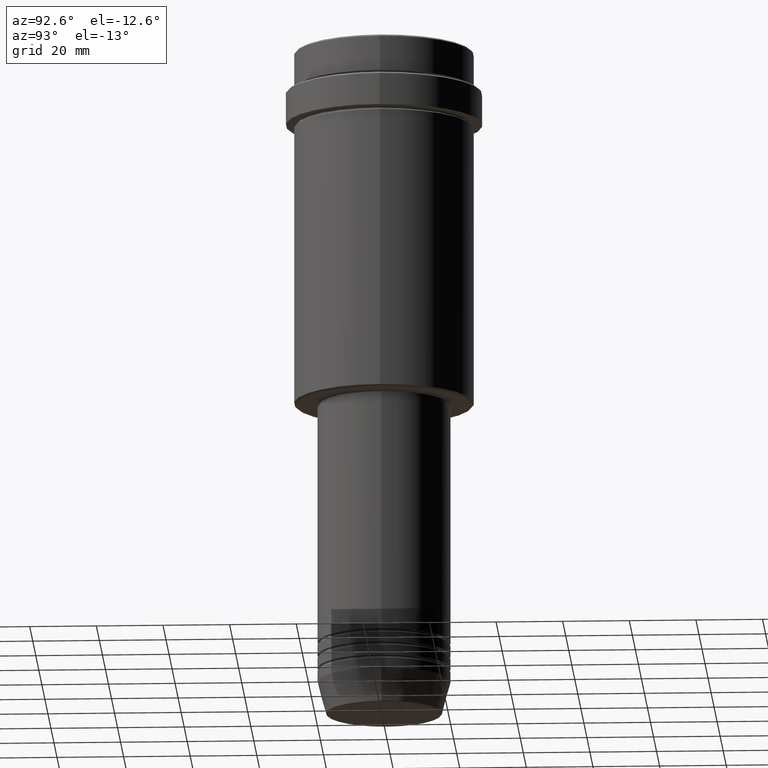
[diagram: clean part render]
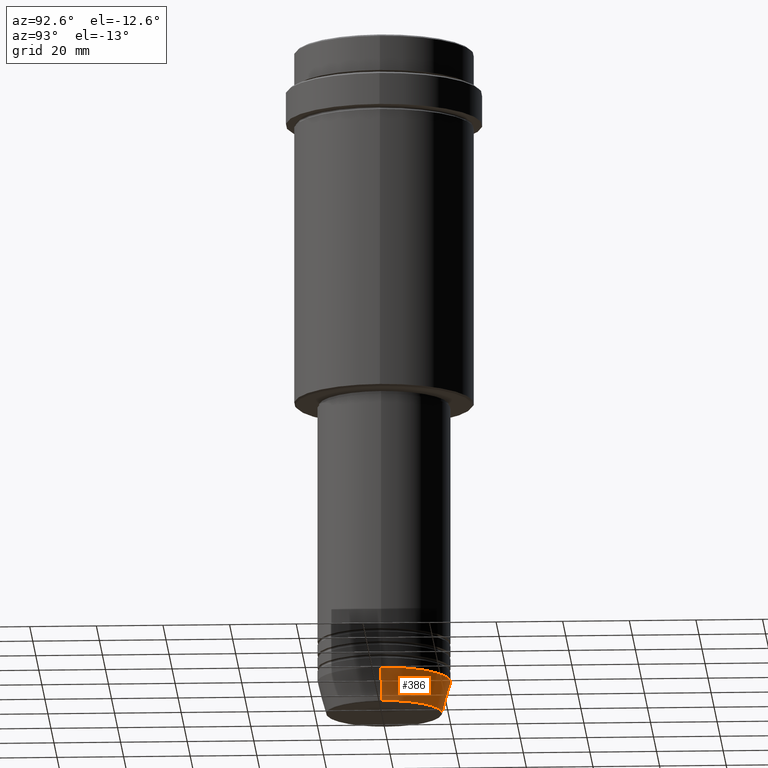
[diagram: same view with one face highlighted and labeled with its STEP entity id]
A machine part, auxiliary view. The second image highlights one B-rep face of the part: STEP entity #386.
In plain terms, the highlighted conical surface has half-angle 15 deg.
Its self-contained STEP definition (entity closure, byte-faithful):
#31 = CARTESIAN_POINT ( 'NONE',  ( -17.41980749484382329, 2.291302373663531915E-15, -202.6294095225512706 ) ) ;
#47 = AXIS2_PLACEMENT_3D ( 'NONE', #187, #817, #1394 ) ;
#79 = DIRECTION ( 'NONE',  ( -0.000000000000000000, -0.000000000000000000, 1.000000000000000000 ) ) ;
#91 = DIRECTION ( 'NONE',  ( 0.2588190451025211836, 0.000000000000000000, 0.9659258262890680902 ) ) ;
#162 = AXIS2_PLACEMENT_3D ( 'NONE', #303, #622, #1050 ) ;
#164 = AXIS2_PLACEMENT_3D ( 'NONE', #892, #79, #917 ) ;
#187 = CARTESIAN_POINT ( 'NONE',  ( 0.000000000000000000, 0.000000000000000000, -193.0000000000000000 ) ) ;
#201 = EDGE_LOOP ( 'NONE', ( #735, #374, #391, #947 ) ) ;
#250 = VERTEX_POINT ( 'NONE', #756 ) ;
#303 = CARTESIAN_POINT ( 'NONE',  ( 0.000000000000000000, 0.000000000000000000, -202.6294095225512706 ) ) ;
#313 = CIRCLE ( 'NONE', #162, 17.41980749484382329 ) ;
#374 = ORIENTED_EDGE ( 'NONE', *, *, #712, .T. ) ;
#386 = ADVANCED_FACE ( 'NONE', ( #948 ), #647, .T. ) ;
#391 = ORIENTED_EDGE ( 'NONE', *, *, #904, .F. ) ;
#398 = EDGE_CURVE ( 'NONE', #1188, #821, #313, .T. ) ;
#408 = CARTESIAN_POINT ( 'NONE',  ( 20.00000000000000000, 0.000000000000000000, -193.0000000000000000 ) ) ;
#500 = VERTEX_POINT ( 'NONE', #833 ) ;
#586 = LINE ( 'NONE', #408, #981 ) ;
#591 = CARTESIAN_POINT ( 'NONE',  ( 17.41980749484382329, 0.000000000000000000, -202.6294095225512706 ) ) ;
#622 = DIRECTION ( 'NONE',  ( -0.000000000000000000, -0.000000000000000000, 1.000000000000000000 ) ) ;
#647 = CONICAL_SURFACE ( 'NONE', #47, 20.00000000000000000, 0.2617993877991499074 ) ;
#712 = EDGE_CURVE ( 'NONE', #821, #250, #1015, .T. ) ;
#735 = ORIENTED_EDGE ( 'NONE', *, *, #398, .T. ) ;
#756 = CARTESIAN_POINT ( 'NONE',  ( -20.00000000000000000, 2.449293598294706513E-15, -193.0000000000000000 ) ) ;
#760 = DIRECTION ( 'NONE',  ( -0.2588190451025211836, 3.169619151431770488E-17, 0.9659258262890680902 ) ) ;
#772 = CIRCLE ( 'NONE', #164, 20.00000000000000000 ) ;
#817 = DIRECTION ( 'NONE',  ( -0.000000000000000000, -0.000000000000000000, 1.000000000000000000 ) ) ;
#821 = VERTEX_POINT ( 'NONE', #31 ) ;
#825 = VECTOR ( 'NONE', #760, 1000.000000000000114 ) ;
#833 = CARTESIAN_POINT ( 'NONE',  ( 20.00000000000000000, 0.000000000000000000, -193.0000000000000000 ) ) ;
#892 = CARTESIAN_POINT ( 'NONE',  ( 0.000000000000000000, 0.000000000000000000, -193.0000000000000000 ) ) ;
#904 = EDGE_CURVE ( 'NONE', #500, #250, #772, .T. ) ;
#917 = DIRECTION ( 'NONE',  ( 1.000000000000000000, 0.000000000000000000, 0.000000000000000000 ) ) ;
#947 = ORIENTED_EDGE ( 'NONE', *, *, #1037, .F. ) ;
#948 = FACE_OUTER_BOUND ( 'NONE', #201, .T. ) ;
#981 = VECTOR ( 'NONE', #91, 1000.000000000000114 ) ;
#1001 = CARTESIAN_POINT ( 'NONE',  ( -20.00000000000000000, 2.449293598294706513E-15, -193.0000000000000000 ) ) ;
#1015 = LINE ( 'NONE', #1001, #825 ) ;
#1037 = EDGE_CURVE ( 'NONE', #1188, #500, #586, .T. ) ;
#1050 = DIRECTION ( 'NONE',  ( 1.000000000000000000, 0.000000000000000000, 0.000000000000000000 ) ) ;
#1188 = VERTEX_POINT ( 'NONE', #591 ) ;
#1394 = DIRECTION ( 'NONE',  ( 1.000000000000000000, 0.000000000000000000, 0.000000000000000000 ) ) ;